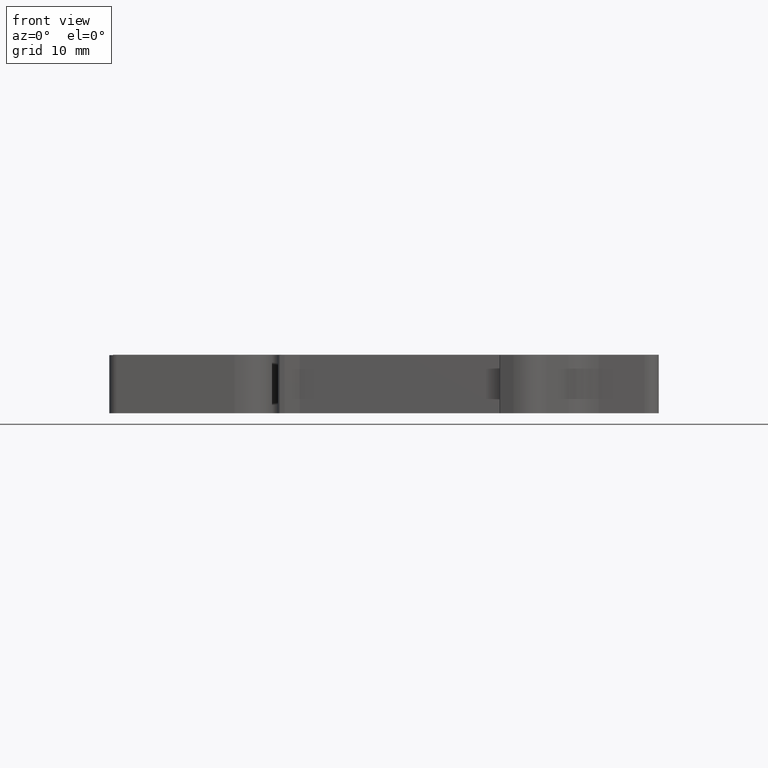
[diagram: clean part render]
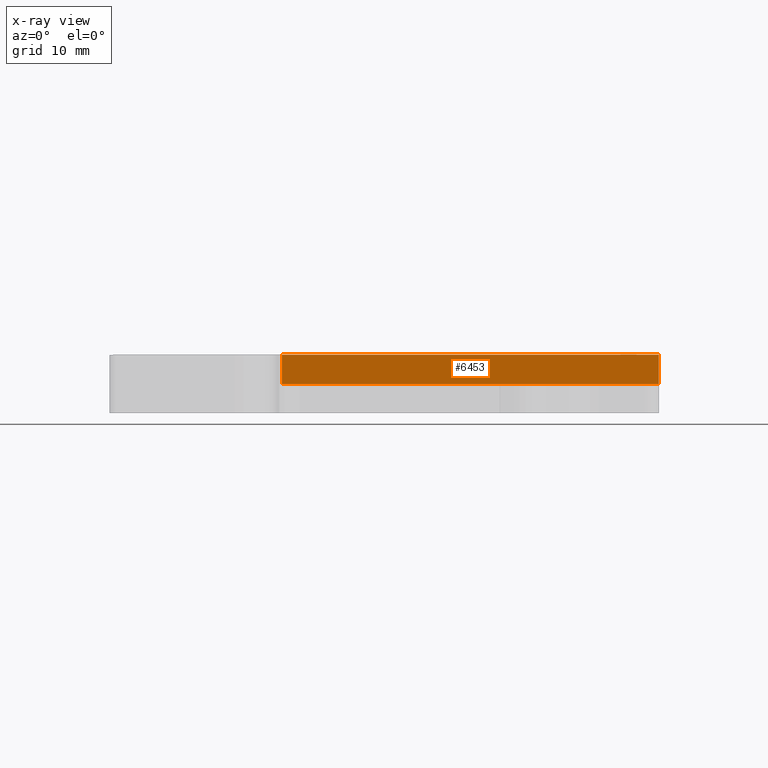
[diagram: x-ray — body ghosted, one internal face saturated and labeled with its STEP entity id]
A machine part, front view, then the same camera in x-ray: the body is ghosted and one INTERNAL B-rep face — a face not visible from any outside direction — is saturated and labeled: STEP entity #6453.
In plain terms, the highlighted planar face has unit normal (0, 1, 0).
Its self-contained STEP definition (entity closure, byte-faithful):
#4088 = VERTEX_POINT ( 'NONE', #10209 ) ;
#4121 = VERTEX_POINT ( 'NONE', #10299 ) ;
#4138 = VERTEX_POINT ( 'NONE', #10294 ) ;
#4155 = VERTEX_POINT ( 'NONE', #10570 ) ;
#6453 = ADVANCED_FACE ( 'NONE', ( #24602 ), #24608, .F. ) ;
#7223 = AXIS2_PLACEMENT_3D ( 'NONE', #24638, #24604, #24609 ) ;
#7428 = VECTOR ( 'NONE', #20198, 1000.000000000000000 ) ;
#7442 = VECTOR ( 'NONE', #20179, 1000.000000000000000 ) ;
#7454 = VECTOR ( 'NONE', #20102, 1000.000000000000000 ) ;
#7485 = VECTOR ( 'NONE', #20257, 1000.000000000000000 ) ;
#10209 = CARTESIAN_POINT ( 'NONE',  ( 1545.874980785128200, 1001.171102831161200, 4.049999999999999800 ) ) ;
#10294 = CARTESIAN_POINT ( 'NONE',  ( 1545.874980785125000, 1001.171102831160100, 8.099999999999999600 ) ) ;
#10299 = CARTESIAN_POINT ( 'NONE',  ( 1493.722140251484000, 1001.171102831160100, 8.099999999999999600 ) ) ;
#10570 = CARTESIAN_POINT ( 'NONE',  ( 1493.722140251484000, 1001.171102831160100, 4.049999999999999800 ) ) ;
#12074 = EDGE_CURVE ( 'NONE', #4155, #4088, #20078, .T. ) ;
#12095 = EDGE_CURVE ( 'NONE', #4138, #4088, #20199, .T. ) ;
#12097 = EDGE_CURVE ( 'NONE', #4138, #4121, #20158, .T. ) ;
#12117 = EDGE_CURVE ( 'NONE', #4121, #4155, #20285, .T. ) ;
#20068 = CARTESIAN_POINT ( 'NONE',  ( 1540.991876861575100, 1001.171102831160100, 4.049999999999999800 ) ) ;
#20078 = LINE ( 'NONE', #20068, #7454 ) ;
#20102 = DIRECTION ( 'NONE',  ( 1.000000000000000000, 0.0000000000000000000, 0.0000000000000000000 ) ) ;
#20158 = LINE ( 'NONE', #20160, #7442 ) ;
#20160 = CARTESIAN_POINT ( 'NONE',  ( 1504.251835579599900, 1001.171102831160100, 8.099999999999999600 ) ) ;
#20172 = CARTESIAN_POINT ( 'NONE',  ( 1545.874980785125000, 1001.171102831160100, 85.46787831948748200 ) ) ;
#20179 = DIRECTION ( 'NONE',  ( -1.000000000000000000, 0.0000000000000000000, 0.0000000000000000000 ) ) ;
#20198 = DIRECTION ( 'NONE',  ( 0.0000000000000000000, 0.0000000000000000000, -1.000000000000000000 ) ) ;
#20199 = LINE ( 'NONE', #20172, #7428 ) ;
#20257 = DIRECTION ( 'NONE',  ( -0.0000000000000000000, -0.0000000000000000000, -1.000000000000000000 ) ) ;
#20285 = LINE ( 'NONE', #20295, #7485 ) ;
#20295 = CARTESIAN_POINT ( 'NONE',  ( 1493.722140251484000, 1001.171102831160100, 8.115041464837300800 ) ) ;
#21793 = EDGE_LOOP ( 'NONE', ( #27908, #27894, #27830, #27824 ) ) ;
#24602 = FACE_OUTER_BOUND ( 'NONE', #21793, .T. ) ;
#24604 = DIRECTION ( 'NONE',  ( 0.0000000000000000000, 1.000000000000000000, 0.0000000000000000000 ) ) ;
#24608 = PLANE ( 'NONE',  #7223 ) ;
#24609 = DIRECTION ( 'NONE',  ( 0.0000000000000000000, 0.0000000000000000000, 1.000000000000000000 ) ) ;
#24638 = CARTESIAN_POINT ( 'NONE',  ( 1550.064525587765000, 1001.171102831160100, 8.115041464837300800 ) ) ;
#27824 = ORIENTED_EDGE ( 'NONE', *, *, #12074, .T. ) ;
#27830 = ORIENTED_EDGE ( 'NONE', *, *, #12117, .T. ) ;
#27894 = ORIENTED_EDGE ( 'NONE', *, *, #12097, .T. ) ;
#27908 = ORIENTED_EDGE ( 'NONE', *, *, #12095, .F. ) ;